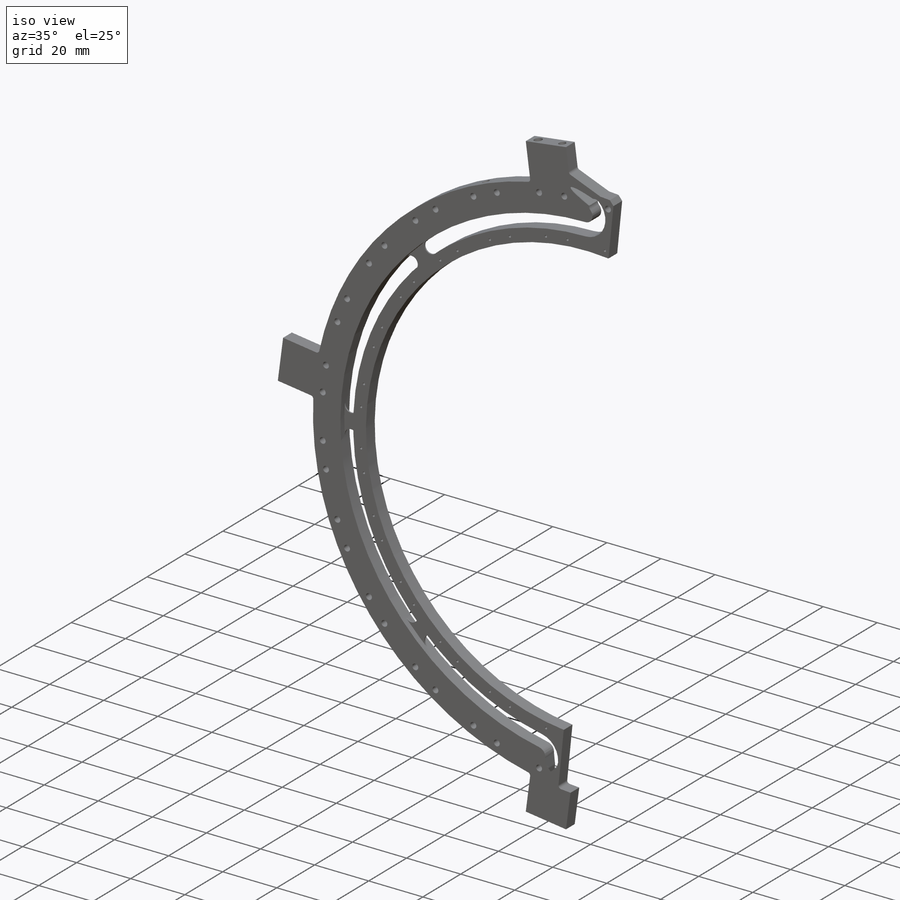
[diagram: iso view]
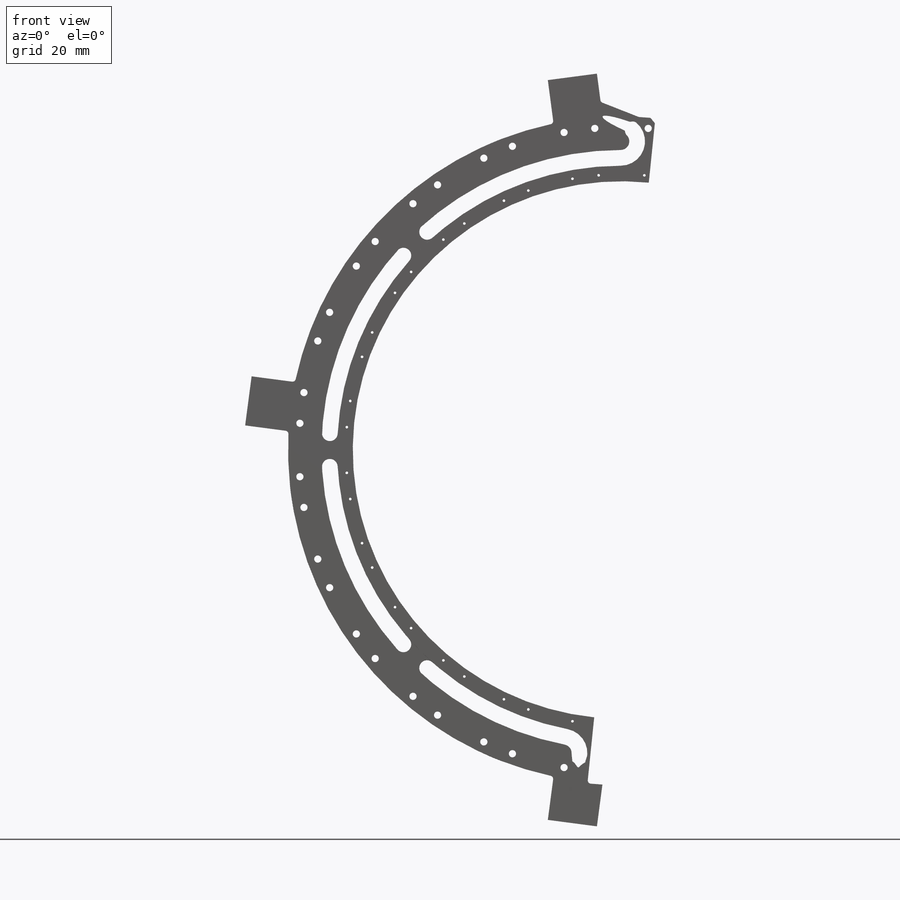
[diagram: front view]
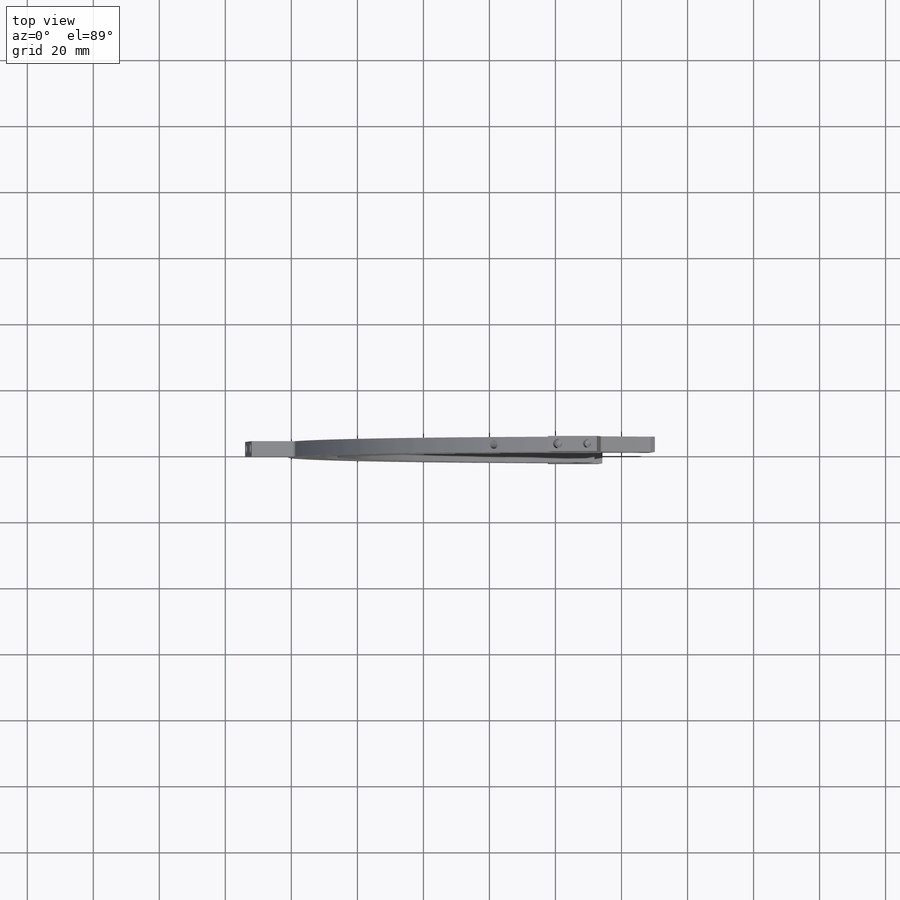
[diagram: top view]
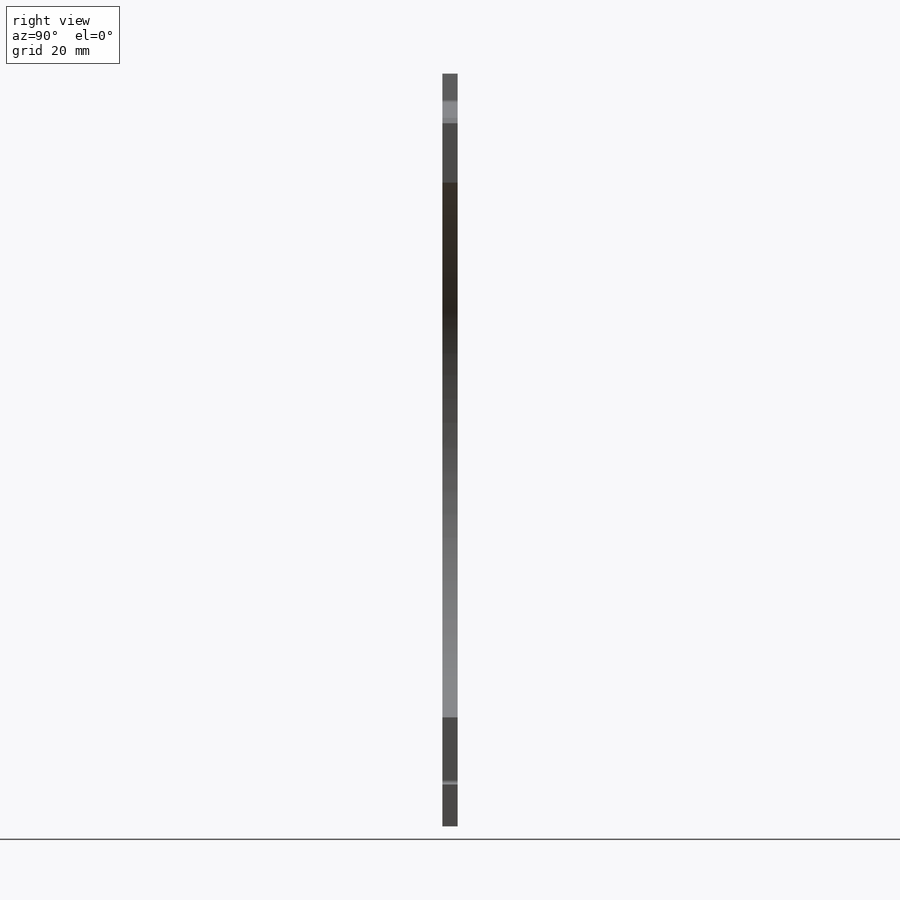
[diagram: right view]
SOLIDWORKS PART (.sldprt)
format: sldprt  version: not decoded by parser v0  size: 1,202,176 bytes
history: native  units: mm
features: sketch x35, plane x13, hole x8, cut_extrude x6, extrude x5, chamfer x5, pattern_circular x4, fillet x4, sweep x3, material x1, helix x1, cut_revolve x1 + 2 further entries (+13 scaffold rows collapsed)
feature tree (101):
  scaffold x13  (default folders/planes/origin — collapsed)
  material  "Material <not specified>"
  plane  "Plane1"
  plane  "Plane2"
  plane  "Plane3"
  "Axis2"
  "Axis3"
  sketch  "Sketch1"  dims[c1.D1=~167.454764mm c1.D2=173.0mm c1.D5=185.5mm c1.D6=1.0mm c1.D7=3.5mm c1.D8=4.7625mm c1.D9=4.7625mm c1.D10=4.7625mm c1.D12=4.7625mm c1.D13=4.7625mm c1.D14=3.5mm c1.D15=4.7625mm c1.D17=123.5mm c1.D18=2.1844mm c1.D19=2.1844mm c1.D21=101.0mm c1.D22=~86.114123mm c1.D23=~81.401623mm c1.D25=~2.61875mm c1.D26=~7.38125mm c2.D10=3.5mm c2.D5=113.5mm c2.D1=~90.876623mm c2.D3=~2.38125mm c2.D4=~3.310089mm c2.D6=~2.38125mm c2.D7=~2.38125mm c2.D8=~2.61875mm c3.D10=~2.38125mm c3.D12=~2.38125mm c3.D15=~2.61875mm c3.D9=~7.38125mm c3.D20=~2.61875mm c3.D24=101.5mm c3.D3=~206.343466mm c4.D3=7.5deg c4.D4=15.0mm c4.D9=176.0mm c4.D10=182.0mm c4.D11=~231.413519mm c5.D11=9.5deg c5.D12=176.0mm c5.D13=182.0mm c5.D16=5.0mm c5.D17=7.75mm c6.D17=3.5deg c6.D18=~169.449665mm c6.D20=~231.413519mm c7.D20=11.25deg c7.D24=~11.536081mm c8.D24=6.0deg c8.D27=~181.375931mm c9.D27=6.0deg c9.D28=4.7625mm c9.D29=182.375mm c9.D30=4.625mm c10.D30=90.0deg c11.D30=7.75mm c11.D31=7.75mm c11.D32=~231.413519mm c12.D32=3.25deg c12.D10=6.0mm c12.D9=109.0mm c12.D12=~14.766993mm c13.D12=4.0deg c13.D5=~231.413519mm c14.D5=3.5deg c14.D7=~231.413519mm c15.D7=8.75deg c15.D8=6.5mm c15.D10=~13.765647mm c16.D10=0.0deg c16.D11=116.5mm c16.D13=116.5mm c16.D5=106.875mm c16.D6=111.0mm c16.D7=~13.851398mm c16.D9=~10.82198mm c17.D9=~5.829862deg c17.D10=111.0mm c17.D11=~11.637146mm c17.D13=~15.343017mm c18.D13=~111.478635deg c18.D14=~3.000111mm c19.D14=7.5deg c19.D16=110.0mm c20.D16=~5.829862deg c20.D4=114.0mm c21.D4=7.5deg c21.D5=114.0mm c21.D14=15.0mm c21.D17=~157.939797mm c22.D17=7.5deg c22.D18=114.0mm c23.D18=7.5deg c23.D19=~19.598377mm c24.D19=~5.829862deg c24.D20=~3.88125mm c24.D9=~17.726297mm c24.D7=~0.254839mm c24.D11=1.5mm c24.D24=3.0mm c24.D1=0.0mm c24.D5=1.5mm c25.D1=1.5mm]
  extrude  "Extrude1"  Depth=4.6125mm
  sketch  "Sketch3"  dims[c1.D1=~0.79375mm c1.D4=2.1844mm c1.D7=~81.401623mm c1.D8=101.0mm c2.D1=~76.66138mm c3.D1=7.5deg c3.D2=~5.23875mm c4.D2=10.25deg c4.D3=83.5mm c4.D5=97.75mm c4.D6=~5.609255mm c5.D6=~2.159724deg c5.D7=~95.262339mm c5.D8=~3.591273mm]
  cut_extrude  "Cut-Extrude2"  Depth=10mm
  pattern_circular  "CirPattern2"  Count=12 Angle=15deg
  sketch  "Sketch6"  dims[c1.D4=2.1844mm c1.D1=83.5mm c1.D2=83.5mm c2.D2=19.75deg c2.D3=97.75mm c2.D5=~95.262339mm c2.D6=~3.591273mm c2.D7=~5.720739mm c3.D7=~2.159724deg]
  cut_extrude  "Cut-Extrude5"  [1 undecoded]
  pattern_circular  "CirPattern3"  Count=12 Angle=15deg
  plane  "Plane4"
  plane  "Plane5"  Offset=101mm
  hole  "Ø2.5 (2.5) Diameter Hole1"  Diameter=2.5mm Depth=7mm
  sketch  "Sketch9"
  sketch  "Sketch8"  dims[hole-wizard template sketch: 50 standard entries collapsed; hole parameters above]
  pattern_circular  "CirPattern4"  Count=2 Angle=135deg
  chamfer  "Chamfer1"  Distance=1.5mm Angle=45deg
  fillet  "Fillet1"  Radius=1mm
  hole  "Ø2.5 (2.5) Diameter Hole2"  Diameter=2.5mm Depth=5mm
  sketch  "Sketch11"  dims[D1=4.5mm]
  sketch  "Sketch10"  dims[hole-wizard template sketch: 50 standard entries collapsed; hole parameters above]
  hole  "Ø2.5 (2.5) Diameter Hole3"  Diameter=2.5mm Depth=5mm
  sketch  "Sketch13"  dims[D1=4.5mm]
  sketch  "Sketch12"  dims[hole-wizard template sketch: 50 standard entries collapsed; hole parameters above]
  hole  "Ø2.5 (2.5) Diameter Hole4"  Diameter=2.5mm Depth=5mm
  sketch  "Sketch15"  dims[D1=4.5mm]
  sketch  "Sketch14"  dims[hole-wizard template sketch: 50 standard entries collapsed; hole parameters above]
  hole  "#4-40 Tapped Hole1"  Diameter=2.2606mm Depth=7mm
  sketch  "Sketch17"  dims[D1=4.5mm]
  sketch  "Sketch16"  dims[hole-wizard template sketch: 29 standard entries collapsed; hole parameters kept: c8.Tap Drill Depth=7.0mm c8.Thread Major Dia.=2.8448mm c8.Thread Depth=6.0mm c8.D5=~14.816244mm c8.Drill Angle=118.0deg]
  hole  "#4-40 Tapped Hole2"  Diameter=2.2606mm Depth=7mm
  sketch  "Sketch18"  dims[D1=4.5mm]
  sketch  "Sketch19"  dims[hole-wizard template sketch: 29 standard entries collapsed; hole parameters kept: c8.Tap Drill Depth=7.0mm c8.Thread Major Dia.=2.8448mm c8.Thread Depth=6.0mm c8.D5=~14.816244mm c8.Drill Angle=118.0deg]
  hole  "#4-40 Tapped Hole3"  Diameter=2.2606mm Depth=7mm
  sketch  "Sketch20"  dims[D1=4.5mm]
  sketch  "Sketch21"  dims[hole-wizard template sketch: 29 standard entries collapsed; hole parameters kept: c8.Tap Drill Depth=7.0mm c8.Thread Major Dia.=2.8448mm c8.Thread Depth=6.0mm c8.D5=~14.816244mm c8.Drill Angle=118.0deg]
  plane  "Plane6"
  sketch  "Sketch35"  dims[D2=14.0mm D1=~0.79375mm]
  extrude  "Boss-Extrude6"  [1 undecoded]
  plane  "Plane11"  Offset=3.148497mm
  sketch  "Sketch37"  dims[c1.D1=5.0mm c1.D2=5.0mm c2.D1=10.0mm]
  plane  "Plane12"
  helix  "Helix/Spiral1"  Pitch=0.749645mm
  sketch  "Sketch44"  dims[D1=3.0mm]
  plane  "Plane13"
  sketch  "Sketch45"
  sketch  "Sketch46"  dims[c1.D1=~5.533316mm c2.D1=30.0deg]
  extrude  "Boss-Extrude8"  [1 undecoded]
  plane  "Plane14"
  sketch  "Sketch47"  dims[D1=3.175mm]
  sweep  "Cut-Sweep1"
  plane  "Plane15"
  sketch  "Sketch48"
  sweep  "Cut-Sweep2"
  sketch  "Sketch49"  dims[D1=0.0mm]
  sweep  "Cut-Sweep3"
  sketch  "Sketch50"
  cut_revolve  "Cut-Revolve1"  Angle=360deg
  sketch  "Sketch22"  dims[c1.D1=5.75mm c1.D4=5.75mm c1.D5=5.75mm c1.D2=111.0mm c2.D2=7.5deg c2.D3=~125.318321mm c3.D3=7.5deg c3.D4=3.0mm c3.D5=3.0mm]
  cut_extrude  "Cut-Extrude6"  Depth=0.5mm
  plane  "Plane17"
  sketch  "Sketch53"  dims[D1=3.175mm]
  cut_extrude  "Cut-Extrude8"  [1 undecoded]
  chamfer  "Chamfer4"  Distance=0.873128mm Angle=60deg
  chamfer  "Chamfer6"  Distance=0.791888mm Angle=50.158369deg
  fillet  "Fillet7"  Radius=1.5875mm
  sketch  "Sketch36"  dims[D1=3.175mm D2=~0.542957mm]
  extrude  "Boss-Extrude7"  Depth=4mm
  chamfer  "Chamfer2"  Distance=3.848685mm
  chamfer  "Chamfer3"  Distance=0.79375mm
  fillet  "Fillet5"  Radius=1.58749mm
  fillet  "Fillet6"  Radius=1.58749mm
  sketch  "Sketch30"  dims[c1.D1=~5.128777mm c2.D1=82.5deg c2.D2=101.0mm]
  plane  "Plane10"
  hole  "Ø2.5 (2.5) Diameter Hole5"  Diameter=2.5mm Depth=7mm
  sketch  "Sketch32"
  sketch  "Sketch31"  dims[hole-wizard template sketch: 50 standard entries collapsed; hole parameters above]
  sketch  "Sketch33"  dims[c1.D1=~87.843129mm c2.D1=45.0deg c2.D2=~10.810071mm c3.D2=3.5deg c3.D3=83.5mm c3.D4=10.0mm]
  extrude  "Boss-Extrude4"  Depth=0.5mm
  pattern_circular  "CirPattern5"  Count=3 Angle=45deg
  sketch  "Sketch54"  dims[c1.D3=4.7244mm c1.D4=4.7244mm c1.D1=4.7244mm c1.D2=1.5875mm c2.D1=7.0mm c2.D2=10.7244mm c2.D4=3.0mm c3.D1=3.0mm c3.D5=2.875mm]
  cut_extrude  "Cut-Extrude9"  [1 undecoded]
  sketch  "Sketch55"  dims[c1.D3=4.7244mm c1.D4=4.7244mm c1.D1=4.7244mm c1.D2=1.5875mm c2.D1=7.0mm c2.D2=10.7244mm c2.D4=3.0mm c3.D1=3.0mm c3.D5=2.875mm]
  cut_extrude  "Cut-Extrude10"  [1 undecoded]
decode coverage: 58 of 72 modeling features carry decoded parameters; 2 rows unclassified (native names shown)
note: ~ marks probable driven/reference dimensions
note: 6 parameter values undecoded
summary: Diameter pulled from absorbed wizard sketch | no parameter record found for 6 features
note: suppression state not decoded; provenance and decode notes live in map.json
